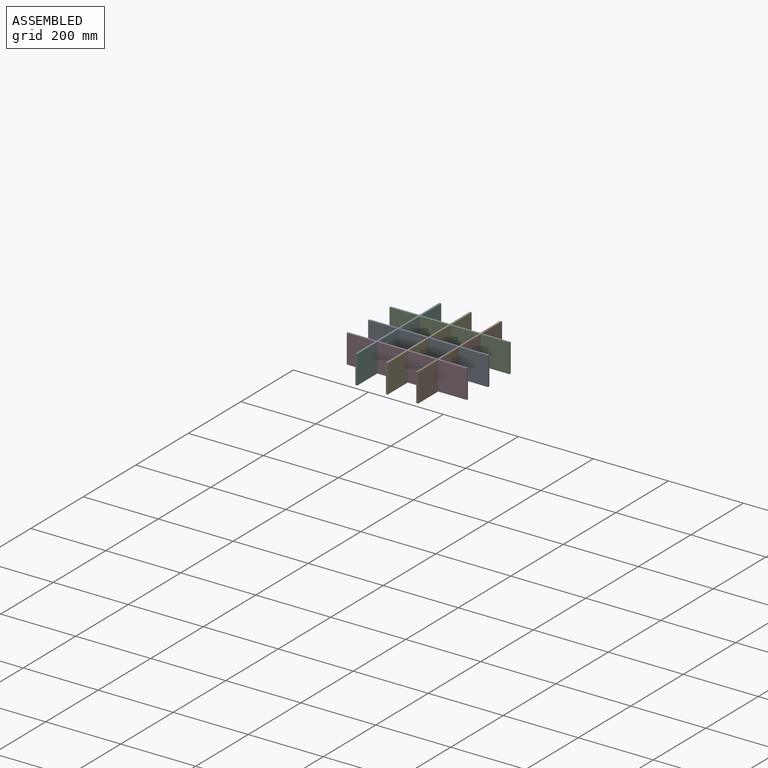
[diagram: assembled view]
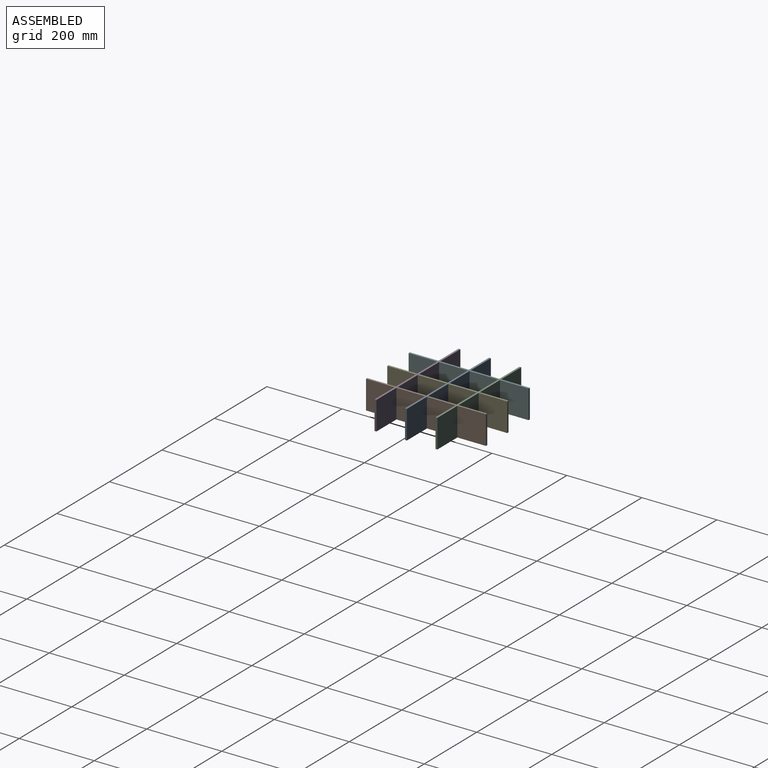
[diagram: assembled view, second angle]
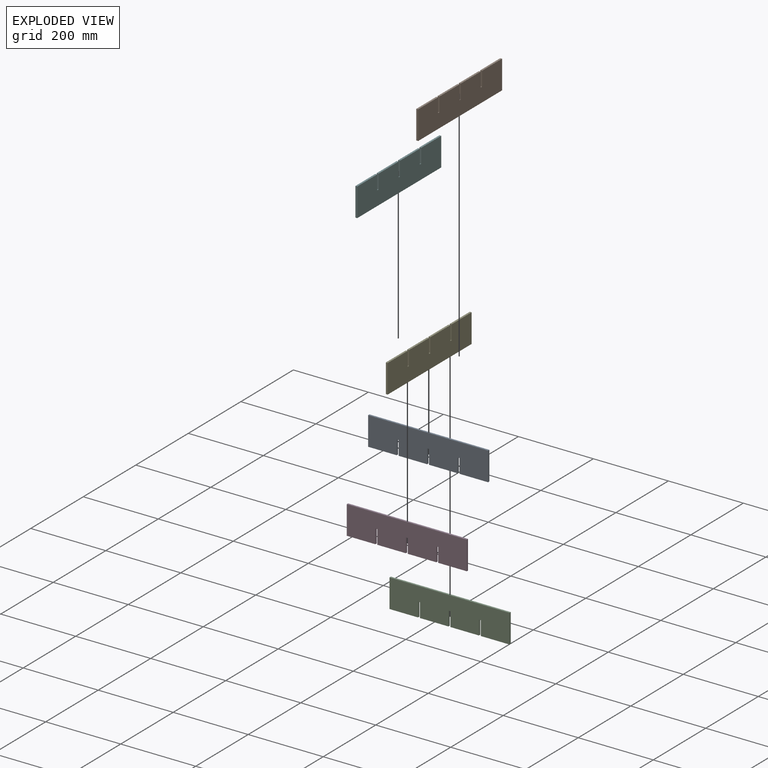
[diagram: exploded view]
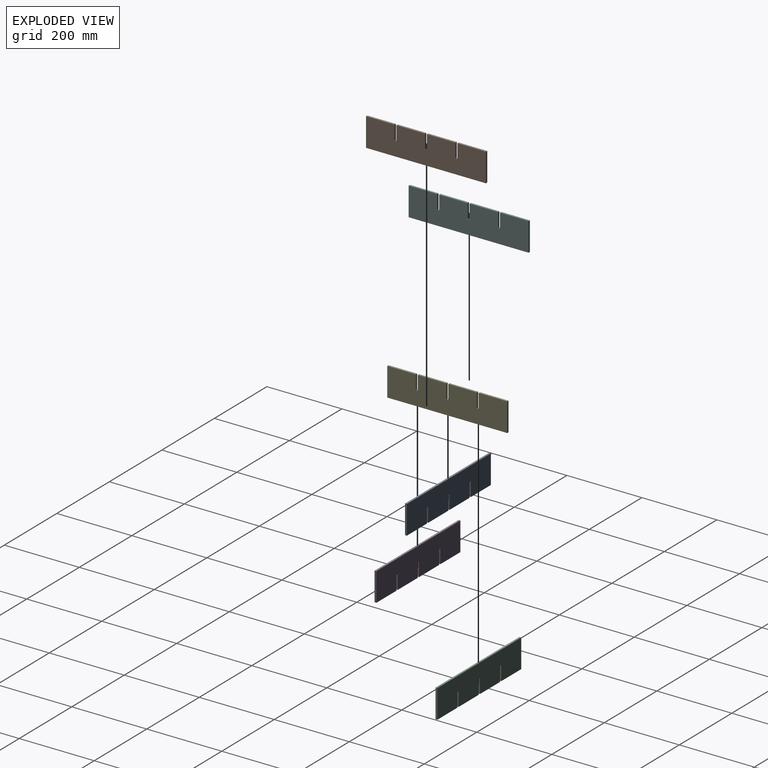
[diagram: exploded view, second angle]
ASSEMBLY  parts=6 mates=15
PART A: 18 faces, bbox 319.8x5x76.2 mm
  f0: plane 38.1x5mm, normal (-1,0,0), area 190.5mm2, adj f1,f15,f16,f17
  f1: plane 76.2x5mm, normal (0,0,-1), area 381mm2, adj f0,f2,f16,f17
  f2: plane 38.1x5mm, normal (1,0,0), area 190.5mm2, adj f1,f3,f16,f17
  f3: plane 5x5mm, normal (0,0,-1), area 25mm2, adj f2,f4,f16,f17
  f4: plane 38.1x5mm, normal (-1,0,0), area 190.5mm2, adj f3,f5,f16,f17
  f5: plane 76.2x5mm, normal (0,0,-1), area 381mm2, adj f4,f6,f16,f17
  f6: plane 38.1x5mm, normal (1,0,0), area 190.5mm2, adj f5,f7,f16,f17
  f7: plane 5x5mm, normal (0,0,-1), area 25mm2, adj f6,f8,f16,f17
  f8: plane 38.1x5mm, normal (-1,0,0), area 190.5mm2, adj f7,f9,f16,f17
  f9: plane 76.2x5mm, normal (0,0,-1), area 381mm2, adj f8,f10,f16,f17
  f10: plane 76.2x5mm, normal (1,0,0), area 381mm2, adj f9,f11,f16,f17
  f11: plane 319.8x5mm, normal (0,0,1), area 1599mm2, adj f10,f12,f16,f17
  f12: plane 76.2x5mm, normal (-1,0,0), area 381mm2, adj f11,f13,f16,f17
  f13: plane 76.2x5mm, normal (0,0,-1), area 381mm2, adj f12,f14,f16,f17
  f14: plane 38.1x5mm, normal (1,0,0), area 190.5mm2, adj f13,f15,f16,f17
  f15: plane 5x5mm, normal (0,0,-1), area 25mm2, adj f0,f14,f16,f17
  f16: plane 319.8x76.2mm, normal (0,-1,0), area 23797.3mm2, adj f0,f1,f2,f3,f4,f5,f6,f7
  f17: plane 319.8x76.2mm, normal (0,1,0), area 23797.3mm2, adj f0,f1,f2,f3,f4,f5,f6,f7
PART B: same geometry as A
PART C: same geometry as A
PART D: same geometry as A
PART E: same geometry as A
PART F: same geometry as A
PLACE A t=(-110.76,19.98,35.03)mm
PLACE B rot(axis=(0.71,0.71,0),180deg) t=(132.84,-142.42,111.23)mm
PLACE C t=(-110.76,101.18,35.03)mm
PLACE D rot(axis=(-0.2,-0.7,-0.68),0deg) t=(-110.76,-61.22,35.03)mm
PLACE E rot(axis=(-0.71,-0.71,0),180deg) t=(51.64,-142.42,111.23)mm
PLACE F rot(axis=(-0.71,-0.71,0),180deg) t=(-29.56,-142.42,111.23)mm
MATE planar E.f8 <-> C.f17  axis (0,-1,0) through (49.14,101.18,92.18)mm
MATE planar A.f16 <-> B.f2  axis (0,-1,0) through (49.14,14.98,73.59)mm
MATE planar A.f7 <-> B.f3  axis (0,0,-1) through (130.34,14.98,73.13)mm
MATE planar D.f16 <-> B.f14  axis (0,-1,0) through (127.84,-66.22,73.13)mm
MATE planar E.f17 <-> C.f4  axis (1,0,0) through (51.64,17.48,72.67)mm
MATE planar D.f7 <-> B.f15  axis (0,0,-1) through (130.34,-63.72,73.13)mm
MATE planar C.f14 <-> F.f16  axis (1,0,0) through (-34.56,98.68,54.08)mm
MATE planar B.f17 <-> A.f8  axis (1,0,0) through (132.84,17.48,72.67)mm
MATE planar F.f7 <-> C.f15  axis (0,0,1) through (-32.06,98.68,73.13)mm
MATE planar C.f7 <-> B.f7  axis (0,0,-1) through (130.34,98.68,73.13)mm
MATE planar E.f7 <-> C.f3  axis (0,0,1) through (49.14,98.68,73.13)mm
MATE planar B.f8 <-> C.f17  axis (0,-1,0) through (130.34,101.18,92.18)mm
MATE planar B.f16 <-> D.f6  axis (-1,0,0) through (127.84,-142.42,111.23)mm
MATE planar F.f8 <-> C.f17  axis (0,-1,0) through (-32.06,101.18,92.18)mm
MATE planar B.f17 <-> C.f8  axis (1,0,0) through (132.84,17.48,72.67)mm
